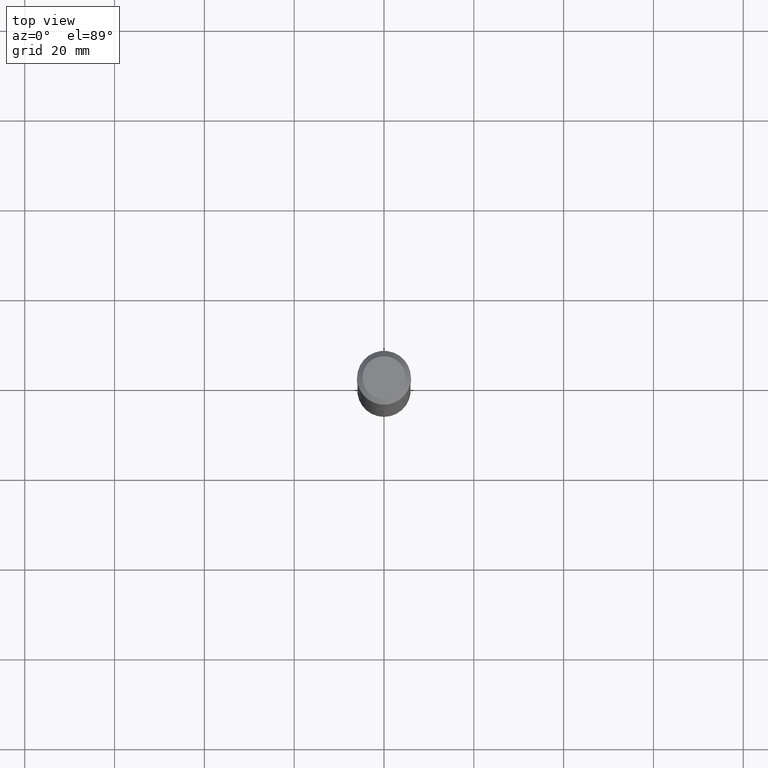
[diagram: clean part render]
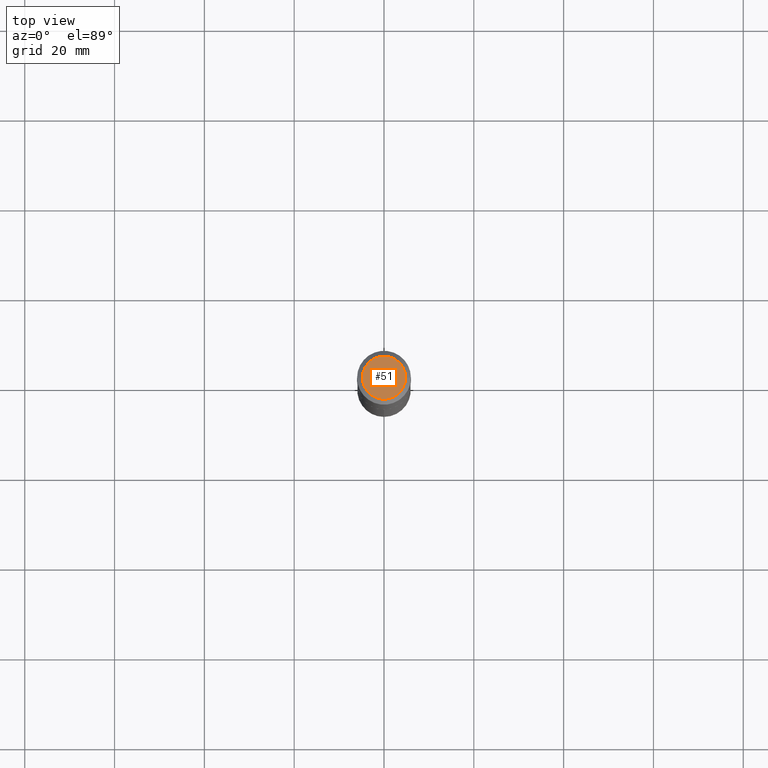
[diagram: same view with one face highlighted and labeled with its STEP entity id]
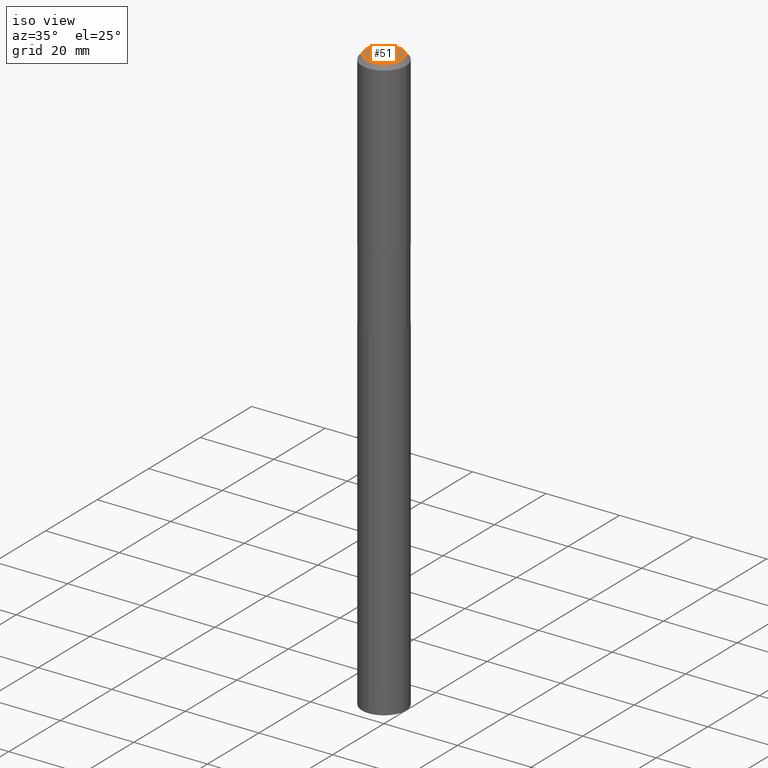
[diagram: same view with one face highlighted and labeled with its STEP entity id]
A machine part, top view. The second image highlights one B-rep face of the part: STEP entity #51.
A second angle (iso view) of the same face is appended — the face is thin or edge-on in the first view.
In plain terms, the highlighted planar face has unit normal (0, -0, -1).
Its self-contained STEP definition (entity closure, byte-faithful):
#6 = DIRECTION ( 'NONE',  ( -2.445468806185136597E-29, 3.491481338843145583E-15, 1.000000000000000000 ) ) ;
#30 = FACE_OUTER_BOUND ( 'NONE', #276, .T. ) ;
#48 = CIRCLE ( 'NONE', #152, 0.1889600000000000168 ) ;
#51 = ADVANCED_FACE ( 'NONE', ( #30 ), #61, .F. ) ;
#58 = DIRECTION ( 'NONE',  ( -2.445468806185136597E-29, 3.491481338843145583E-15, 1.000000000000000000 ) ) ;
#61 = PLANE ( 'NONE',  #347 ) ;
#76 = DIRECTION ( 'NONE',  ( 1.000000000000000000, -6.982962677686266711E-15, 4.876185090822587894E-29 ) ) ;
#92 = ORIENTED_EDGE ( 'NONE', *, *, #422, .T. ) ;
#152 = AXIS2_PLACEMENT_3D ( 'NONE', #281, #6, #76 ) ;
#163 = CIRCLE ( 'NONE', #442, 0.1889600000000000168 ) ;
#181 = DIRECTION ( 'NONE',  ( 1.000000000000000000, -6.982962677686266711E-15, 4.876185090822587894E-29 ) ) ;
#242 = ORIENTED_EDGE ( 'NONE', *, *, #479, .T. ) ;
#276 = EDGE_LOOP ( 'NONE', ( #92, #242 ) ) ;
#281 = CARTESIAN_POINT ( 'NONE',  ( -9.427742298522546243E-47, 1.346031739168365344E-32, 3.855188123715862256E-18 ) ) ;
#286 = DIRECTION ( 'NONE',  ( 2.438088387897960049E-29, -3.491481338843145188E-15, -1.000000000000000000 ) ) ;
#287 = VERTEX_POINT ( 'NONE', #302 ) ;
#293 = CARTESIAN_POINT ( 'NONE',  ( -4.713871149261273121E-47, 6.730158695841826722E-33, 1.927594061857931128E-18 ) ) ;
#302 = CARTESIAN_POINT ( 'NONE',  ( -0.1889600000000000168, 1.401969416799070942E-15, 3.855188123706346622E-18 ) ) ;
#309 = VERTEX_POINT ( 'NONE', #458 ) ;
#347 = AXIS2_PLACEMENT_3D ( 'NONE', #293, #286, #484 ) ;
#366 = CARTESIAN_POINT ( 'NONE',  ( -9.427742298522546243E-47, 1.346031739168365344E-32, 3.855188123715862256E-18 ) ) ;
#422 = EDGE_CURVE ( 'NONE', #287, #309, #48, .T. ) ;
#442 = AXIS2_PLACEMENT_3D ( 'NONE', #366, #58, #181 ) ;
#458 = CARTESIAN_POINT ( 'NONE',  ( 0.1889600000000000168, -1.540873453589747935E-15, 3.855188123725863225E-18 ) ) ;
#479 = EDGE_CURVE ( 'NONE', #309, #287, #163, .T. ) ;
#484 = DIRECTION ( 'NONE',  ( -1.000000000000000000, 6.982962677686265922E-15, -4.876176775795935793E-29 ) ) ;